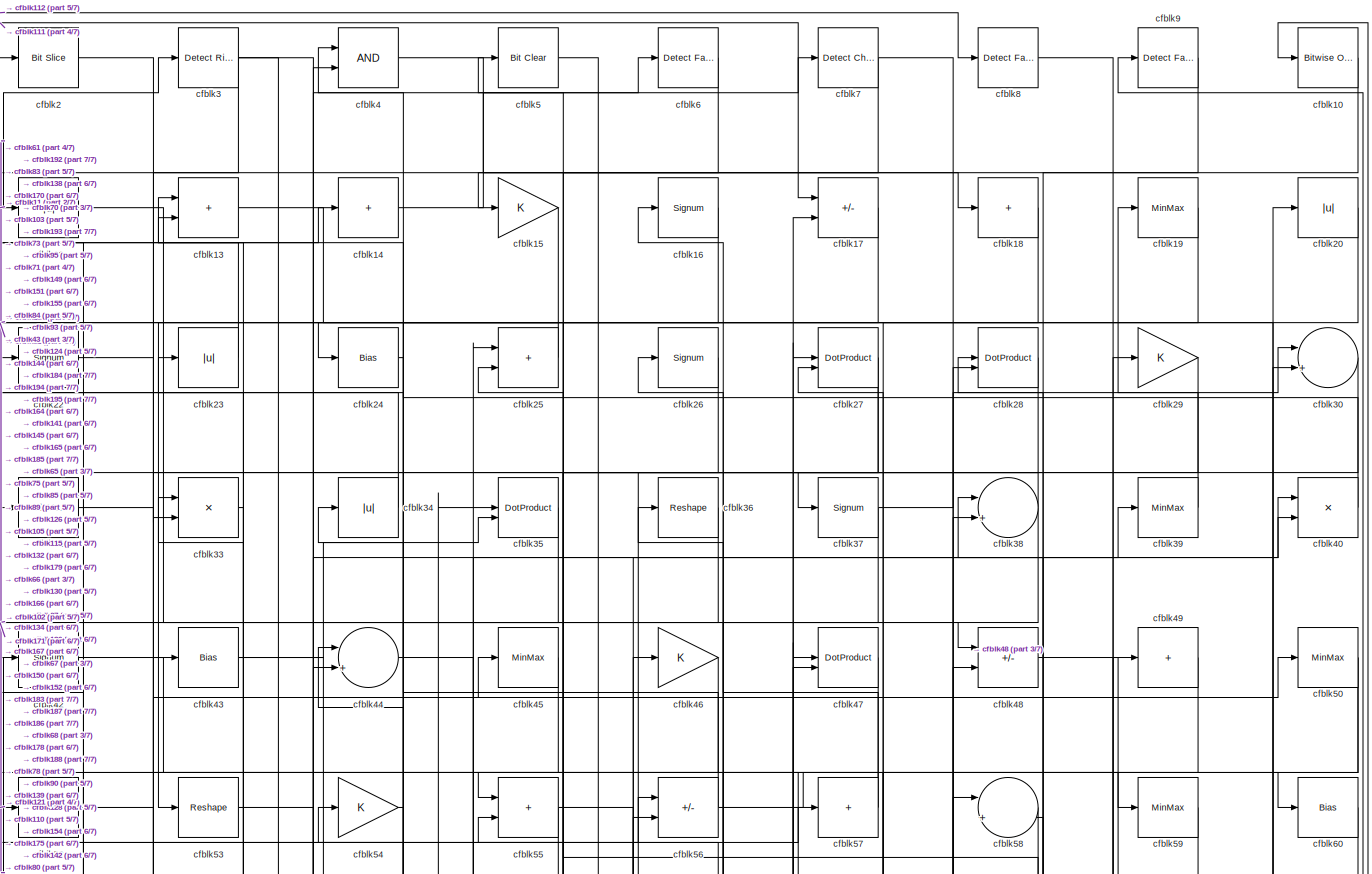
[diagram: root canvas - part 1/7, full width, top band]
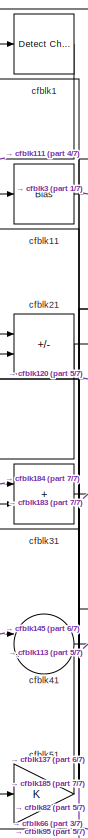
[diagram: root canvas - part 2/7, top left region]
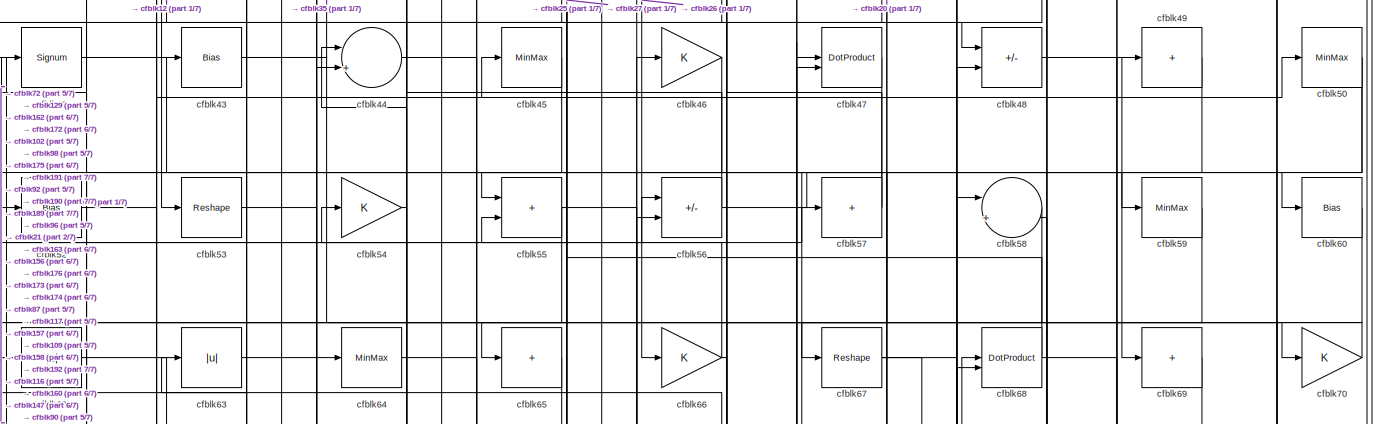
[diagram: root canvas - part 3/7, full width, top band]
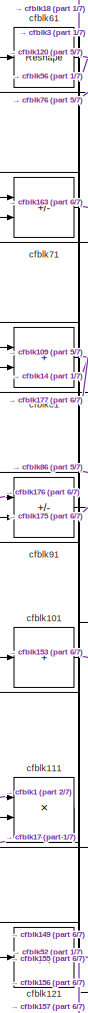
[diagram: root canvas - part 4/7, middle left region]
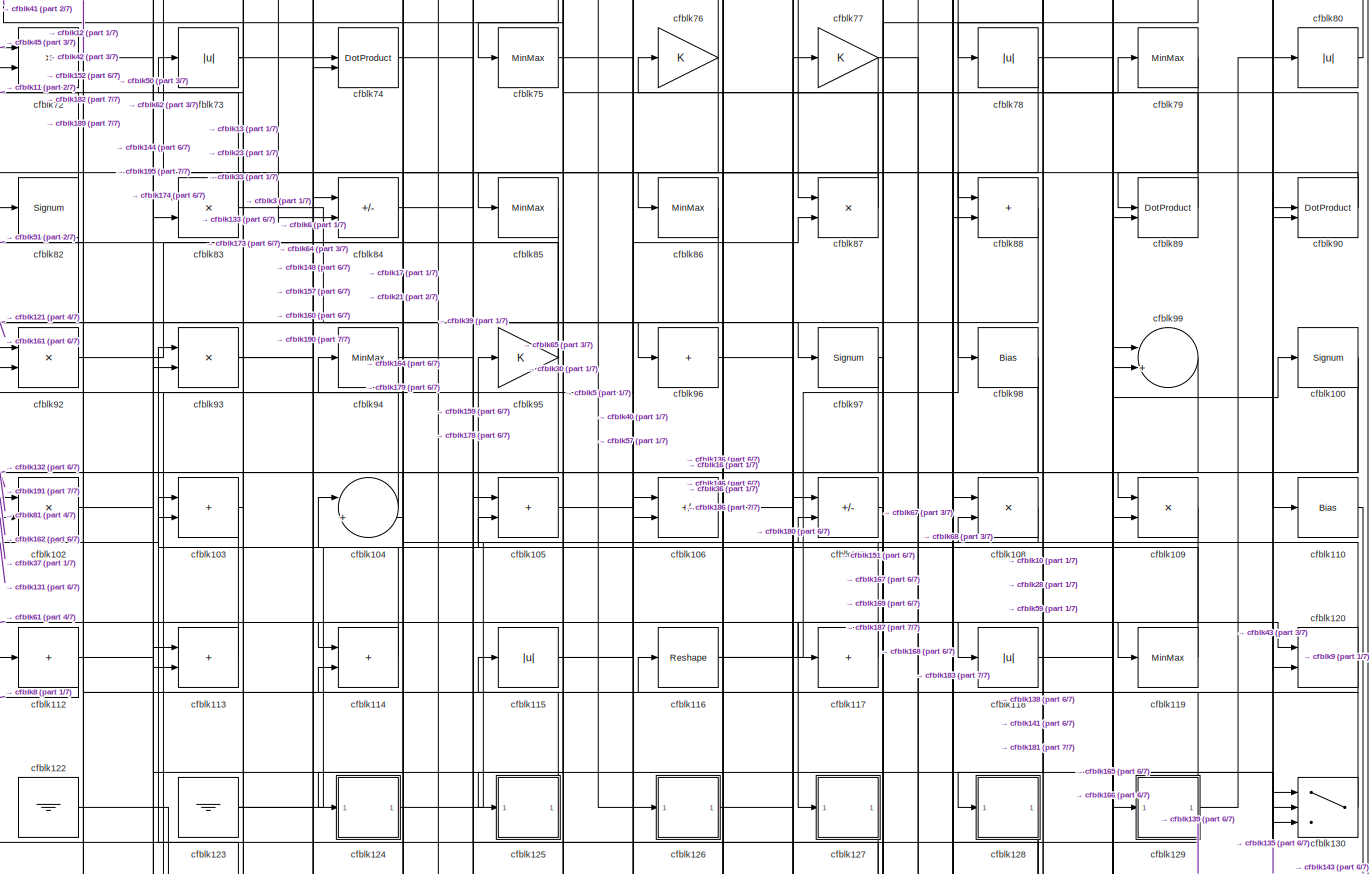
[diagram: root canvas - part 5/7, full width, middle band]
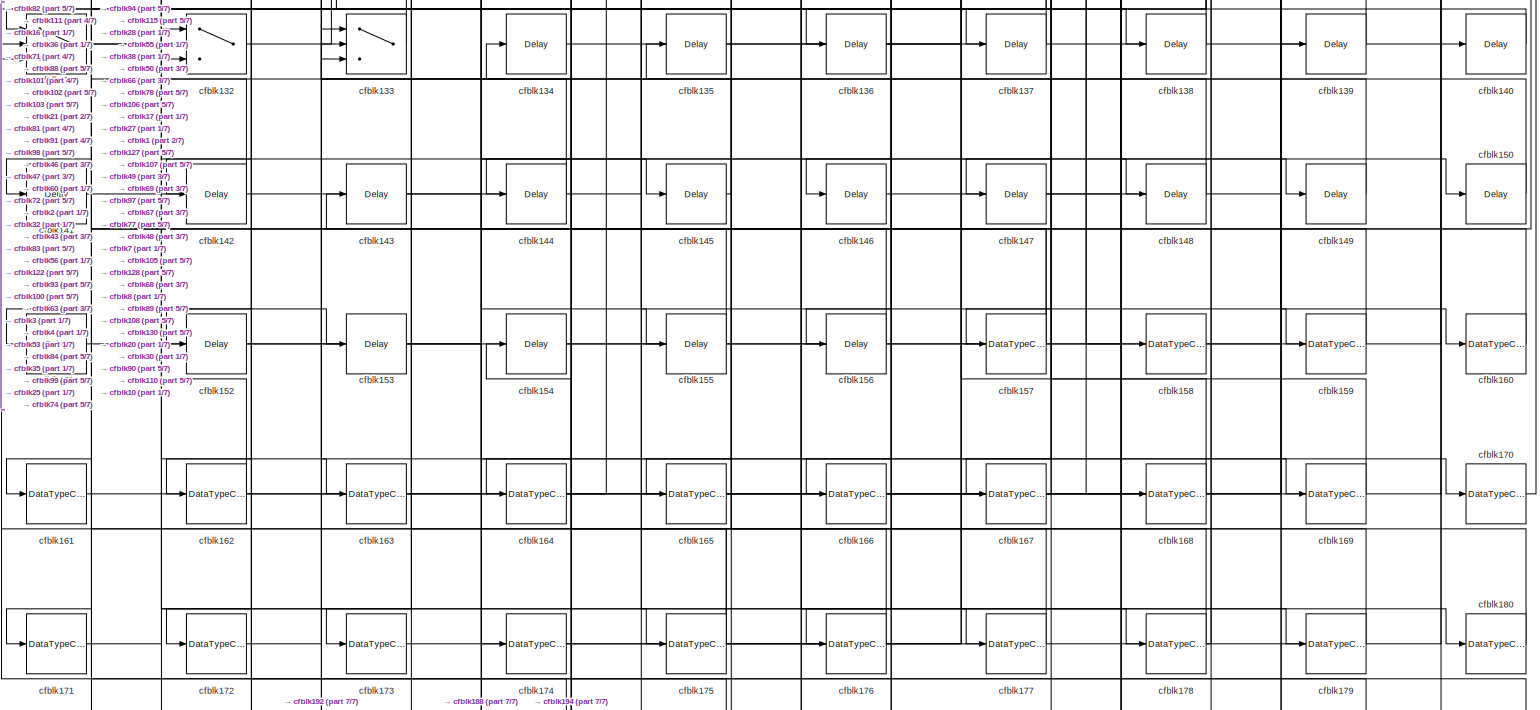
[diagram: root canvas - part 6/7, full width, bottom band]
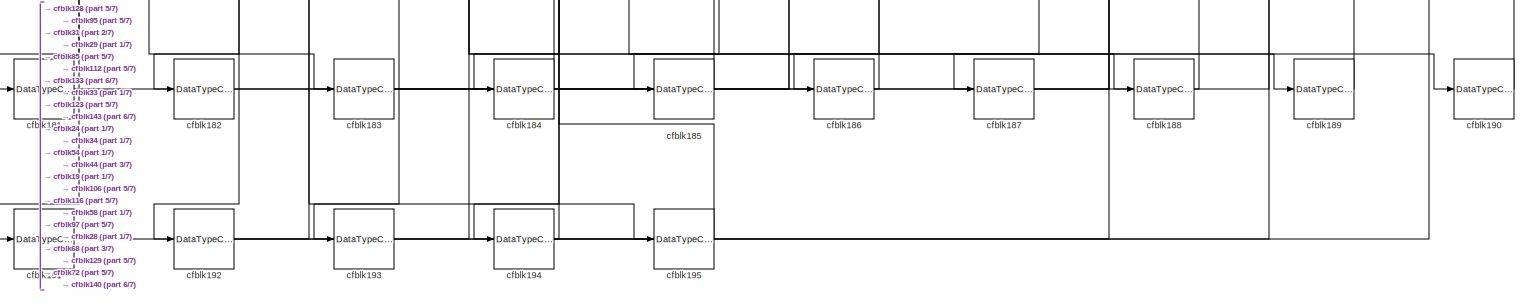
[diagram: root canvas - part 7/7, full width, bottom band]
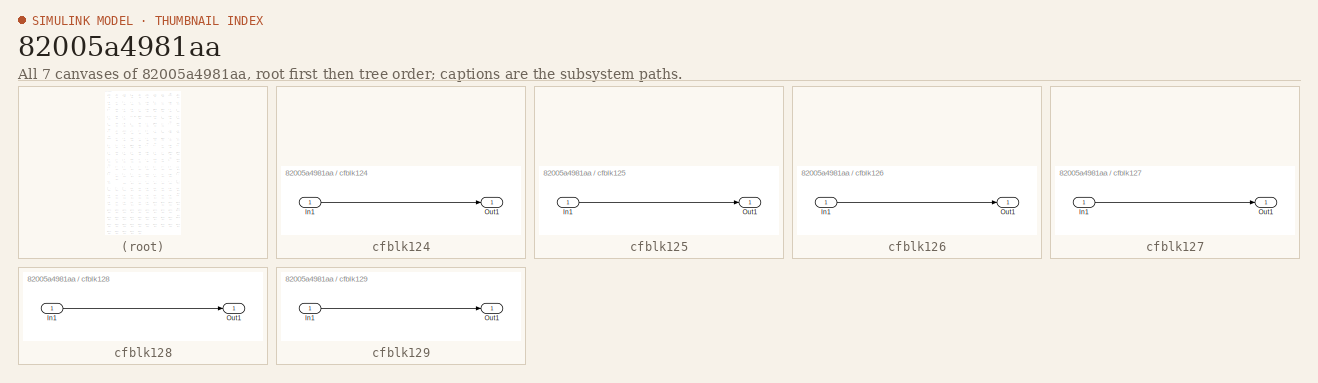
[diagram: thumbnail index - all 7 canvases of the model, root first then tree order]
MODEL slx_82005a4981aa
KIND model
CONFIG AbsTol = auto
CONFIG EnableMultiTasking = off
CONFIG FixedStep = auto
CONFIG MaxStep = auto
CONFIG MinStep = auto
CONFIG RelTol = 1e-3
CONFIG SampleTimeConstraint = Unconstrained
CONFIG SolverName = VariableStepAuto
CONFIG StartTime = 0.0
CONFIG StopTime = 10.0
BLOCK [Reference] cfblk1  REF=simulink/Logic and Bit
Operations/Detect
Change
  LibrarySourceBlock = hdlsllib/Logic and Bit\nOperations/Detect\nChange
  SourceBlock = simulink/Logic and Bit\nOperations/Detect\nChange
  SourceType = Detect Change
BLOCK [Reference] cfblk10  REF=simulink/Logic and Bit
Operations/Bitwise
Operator
  LibrarySourceBlock = hdlsllib/Logic and Bit\nOperations/Bitwise\nOperator
  SourceBlock = simulink/Logic and Bit\nOperations/Bitwise\nOperator
  SourceType = Bitwise Operator
BLOCK [Signum] cfblk100
BLOCK [Sum] cfblk101
  IconShape = rectangular
  Inputs = +
BLOCK [Product] cfblk102
  Inputs = */
  RndMeth = Zero
  SaturateOnIntegerOverflow = on
BLOCK [Sum] cfblk103
  IconShape = rectangular
BLOCK [Sum] cfblk104
  Inputs = |++
BLOCK [Sum] cfblk105
  IconShape = rectangular
BLOCK [Sum] cfblk106
  IconShape = rectangular
  Inputs = +-
BLOCK [Sum] cfblk107
  IconShape = rectangular
  Inputs = +-
BLOCK [Product] cfblk108
  Inputs = */
  RndMeth = Zero
  SaturateOnIntegerOverflow = on
BLOCK [Product] cfblk109
  Inputs = */
  RndMeth = Zero
  SaturateOnIntegerOverflow = on
BLOCK [Bias] cfblk11
  Bias = 0.0
  SaturateOnIntegerOverflow = off
BLOCK [Bias] cfblk110
  Bias = 0.0
  SaturateOnIntegerOverflow = off
BLOCK [Product] cfblk111
  Inputs = */
  RndMeth = Zero
  SaturateOnIntegerOverflow = on
BLOCK [Sum] cfblk112
  IconShape = rectangular
  Inputs = +
BLOCK [Sum] cfblk113
  IconShape = rectangular
BLOCK [Sum] cfblk114
  IconShape = rectangular
BLOCK [Abs] cfblk115
  SaturateOnIntegerOverflow = off
BLOCK [Reshape] cfblk116
BLOCK [Sum] cfblk117
  IconShape = rectangular
  Inputs = +
BLOCK [Abs] cfblk118
  SaturateOnIntegerOverflow = off
BLOCK [MinMax] cfblk119
BLOCK [Abs] cfblk12
  SaturateOnIntegerOverflow = off
BLOCK [Sum] cfblk120
  IconShape = rectangular
BLOCK [Abs] cfblk121
  SaturateOnIntegerOverflow = off
BLOCK [Ground] cfblk122
BLOCK [Ground] cfblk123
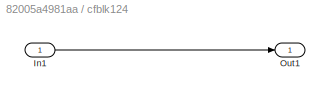
BLOCK [SubSystem] cfblk124
  LibrarySourceBlock = hdlsllib/Ports &\nSubsystems/Subsystem
BLOCK [Inport] cfblk124/In1
BLOCK [Outport] cfblk124/Out1
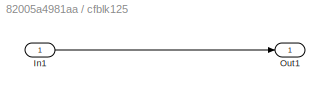
BLOCK [SubSystem] cfblk125
  LibrarySourceBlock = hdlsllib/Ports &\nSubsystems/Subsystem
BLOCK [Inport] cfblk125/In1
BLOCK [Outport] cfblk125/Out1
BLOCK [SubSystem] cfblk126
  LibrarySourceBlock = hdlsllib/Ports &\nSubsystems/Subsystem
BLOCK [Inport] cfblk126/In1
BLOCK [Outport] cfblk126/Out1
BLOCK [SubSystem] cfblk127
  LibrarySourceBlock = hdlsllib/Ports &\nSubsystems/Subsystem
BLOCK [Inport] cfblk127/In1
BLOCK [Outport] cfblk127/Out1
BLOCK [SubSystem] cfblk128
  LibrarySourceBlock = hdlsllib/Ports &\nSubsystems/Subsystem
BLOCK [Inport] cfblk128/In1
BLOCK [Outport] cfblk128/Out1
BLOCK [SubSystem] cfblk129
  LibrarySourceBlock = hdlsllib/Ports &\nSubsystems/Subsystem
BLOCK [Inport] cfblk129/In1
BLOCK [Outport] cfblk129/Out1
BLOCK [Sum] cfblk13
  IconShape = rectangular
BLOCK [Switch] cfblk130
  InputSameDT = off
  SaturateOnIntegerOverflow = off
BLOCK [Switch] cfblk131
  InputSameDT = off
  SaturateOnIntegerOverflow = off
BLOCK [Switch] cfblk132
  InputSameDT = off
  SaturateOnIntegerOverflow = off
BLOCK [Switch] cfblk133
  InputSameDT = off
  SaturateOnIntegerOverflow = off
BLOCK [Delay] cfblk134
  InputPortMap = u0
  SampleTime = 1
BLOCK [Delay] cfblk135
  InputPortMap = u0
  SampleTime = 1
BLOCK [Delay] cfblk136
  InputPortMap = u0
  SampleTime = 1
BLOCK [Delay] cfblk137
  InputPortMap = u0
  SampleTime = 1
BLOCK [Delay] cfblk138
  InputPortMap = u0
  SampleTime = 1
BLOCK [Delay] cfblk139
  InputPortMap = u0
  SampleTime = 1
BLOCK [Sum] cfblk14
  IconShape = rectangular
  Inputs = +
BLOCK [Delay] cfblk140
  InputPortMap = u0
  SampleTime = 1
BLOCK [Delay] cfblk141
  InputPortMap = u0
  SampleTime = 1
BLOCK [Delay] cfblk142
  InputPortMap = u0
  SampleTime = 1
BLOCK [Delay] cfblk143
  InputPortMap = u0
  SampleTime = 1
BLOCK [Delay] cfblk144
  InputPortMap = u0
  SampleTime = 1
BLOCK [Delay] cfblk145
  InputPortMap = u0
  SampleTime = 1
BLOCK [Delay] cfblk146
  InputPortMap = u0
  SampleTime = 1
BLOCK [Delay] cfblk147
  InputPortMap = u0
  SampleTime = 1
BLOCK [Delay] cfblk148
  InputPortMap = u0
  SampleTime = 1
BLOCK [Delay] cfblk149
  InputPortMap = u0
  SampleTime = 1
BLOCK [Gain] cfblk15
BLOCK [Delay] cfblk150
  InputPortMap = u0
  SampleTime = 1
BLOCK [Delay] cfblk151
  InputPortMap = u0
  SampleTime = 1
BLOCK [Delay] cfblk152
  InputPortMap = u0
  SampleTime = 1
BLOCK [Delay] cfblk153
  InputPortMap = u0
  SampleTime = 1
BLOCK [Delay] cfblk154
  InputPortMap = u0
  SampleTime = 1
BLOCK [Delay] cfblk155
  InputPortMap = u0
  SampleTime = 1
BLOCK [Delay] cfblk156
  InputPortMap = u0
  SampleTime = 1
BLOCK [DataTypeConversion] cfblk157
  RndMeth = Floor
  SaturateOnIntegerOverflow = off
BLOCK [DataTypeConversion] cfblk158
  OutDataTypeStr = uint8
  RndMeth = Floor
  SaturateOnIntegerOverflow = off
BLOCK [DataTypeConversion] cfblk159
  OutDataTypeStr = uint8
  RndMeth = Floor
  SaturateOnIntegerOverflow = off
BLOCK [Signum] cfblk16
BLOCK [DataTypeConversion] cfblk160
  OutDataTypeStr = uint8
  RndMeth = Floor
  SaturateOnIntegerOverflow = off
BLOCK [DataTypeConversion] cfblk161
  OutDataTypeStr = uint8
  RndMeth = Floor
  SaturateOnIntegerOverflow = off
BLOCK [DataTypeConversion] cfblk162
  RndMeth = Floor
  SaturateOnIntegerOverflow = off
BLOCK [DataTypeConversion] cfblk163
  OutDataTypeStr = uint8
  RndMeth = Floor
  SaturateOnIntegerOverflow = off
BLOCK [DataTypeConversion] cfblk164
  RndMeth = Floor
  SaturateOnIntegerOverflow = off
BLOCK [DataTypeConversion] cfblk165
  OutDataTypeStr = uint8
  RndMeth = Floor
  SaturateOnIntegerOverflow = off
BLOCK [DataTypeConversion] cfblk166
  OutDataTypeStr = uint8
  RndMeth = Floor
  SaturateOnIntegerOverflow = off
BLOCK [DataTypeConversion] cfblk167
  OutDataTypeStr = uint8
  RndMeth = Floor
  SaturateOnIntegerOverflow = off
BLOCK [DataTypeConversion] cfblk168
  OutDataTypeStr = uint8
  RndMeth = Floor
  SaturateOnIntegerOverflow = off
BLOCK [DataTypeConversion] cfblk169
  OutDataTypeStr = uint8
  RndMeth = Floor
  SaturateOnIntegerOverflow = off
BLOCK [Sum] cfblk17
  IconShape = rectangular
  Inputs = +-
BLOCK [DataTypeConversion] cfblk170
  OutDataTypeStr = uint8
  RndMeth = Floor
  SaturateOnIntegerOverflow = off
BLOCK [DataTypeConversion] cfblk171
  OutDataTypeStr = uint8
  RndMeth = Floor
  SaturateOnIntegerOverflow = off
BLOCK [DataTypeConversion] cfblk172
  OutDataTypeStr = uint8
  RndMeth = Floor
  SaturateOnIntegerOverflow = off
BLOCK [DataTypeConversion] cfblk173
  OutDataTypeStr = uint8
  RndMeth = Floor
  SaturateOnIntegerOverflow = off
BLOCK [DataTypeConversion] cfblk174
  OutDataTypeStr = uint8
  RndMeth = Floor
  SaturateOnIntegerOverflow = off
BLOCK [DataTypeConversion] cfblk175
  RndMeth = Floor
  SaturateOnIntegerOverflow = off
BLOCK [DataTypeConversion] cfblk176
  OutDataTypeStr = uint8
  RndMeth = Floor
  SaturateOnIntegerOverflow = off
BLOCK [DataTypeConversion] cfblk177
  OutDataTypeStr = uint8
  RndMeth = Floor
  SaturateOnIntegerOverflow = off
BLOCK [DataTypeConversion] cfblk178
  RndMeth = Floor
  SaturateOnIntegerOverflow = off
BLOCK [DataTypeConversion] cfblk179
  OutDataTypeStr = uint8
  RndMeth = Floor
  SaturateOnIntegerOverflow = off
BLOCK [Sum] cfblk18
  IconShape = rectangular
  Inputs = +
BLOCK [DataTypeConversion] cfblk180
  OutDataTypeStr = uint8
  RndMeth = Floor
  SaturateOnIntegerOverflow = off
BLOCK [DataTypeConversion] cfblk181
  OutDataTypeStr = uint8
  RndMeth = Floor
  SaturateOnIntegerOverflow = off
BLOCK [DataTypeConversion] cfblk182
  OutDataTypeStr = uint8
  RndMeth = Floor
  SaturateOnIntegerOverflow = off
BLOCK [DataTypeConversion] cfblk183
  RndMeth = Floor
  SaturateOnIntegerOverflow = off
BLOCK [DataTypeConversion] cfblk184
  OutDataTypeStr = uint8
  RndMeth = Floor
  SaturateOnIntegerOverflow = off
BLOCK [DataTypeConversion] cfblk185
  OutDataTypeStr = uint8
  RndMeth = Floor
  SaturateOnIntegerOverflow = off
BLOCK [DataTypeConversion] cfblk186
  OutDataTypeStr = uint8
  RndMeth = Floor
  SaturateOnIntegerOverflow = off
BLOCK [DataTypeConversion] cfblk187
  OutDataTypeStr = uint8
  RndMeth = Floor
  SaturateOnIntegerOverflow = off
BLOCK [DataTypeConversion] cfblk188
  OutDataTypeStr = uint8
  RndMeth = Floor
  SaturateOnIntegerOverflow = off
BLOCK [DataTypeConversion] cfblk189
  OutDataTypeStr = uint8
  RndMeth = Floor
  SaturateOnIntegerOverflow = off
BLOCK [MinMax] cfblk19
BLOCK [DataTypeConversion] cfblk190
  OutDataTypeStr = uint8
  RndMeth = Floor
  SaturateOnIntegerOverflow = off
BLOCK [DataTypeConversion] cfblk191
  OutDataTypeStr = uint8
  RndMeth = Floor
  SaturateOnIntegerOverflow = off
BLOCK [DataTypeConversion] cfblk192
  RndMeth = Floor
  SaturateOnIntegerOverflow = off
BLOCK [DataTypeConversion] cfblk193
  OutDataTypeStr = uint8
  RndMeth = Floor
  SaturateOnIntegerOverflow = off
BLOCK [DataTypeConversion] cfblk194
  RndMeth = Floor
  SaturateOnIntegerOverflow = off
BLOCK [DataTypeConversion] cfblk195
  OutDataTypeStr = uint8
  RndMeth = Floor
  SaturateOnIntegerOverflow = off
BLOCK [Reference] cfblk2  REF=hdlsllib/Logic and Bit
Operations/Bit Slice
  SourceBlock = hdlsllib/Logic and Bit\nOperations/Bit Slice
  SourceType = Bit Slice
BLOCK [Abs] cfblk20
  SaturateOnIntegerOverflow = off
BLOCK [Sum] cfblk21
  IconShape = rectangular
  Inputs = +-
BLOCK [Signum] cfblk22
BLOCK [Abs] cfblk23
  SaturateOnIntegerOverflow = off
BLOCK [Bias] cfblk24
  Bias = 0.0
  SaturateOnIntegerOverflow = off
BLOCK [Sum] cfblk25
  IconShape = rectangular
BLOCK [Signum] cfblk26
BLOCK [DotProduct] cfblk27
  OutDataTypeStr = Inherit: Inherit via internal rule
BLOCK [DotProduct] cfblk28
  OutDataTypeStr = Inherit: Inherit via internal rule
BLOCK [Gain] cfblk29
BLOCK [Reference] cfblk3  REF=hdlsllib/Logic and Bit
Operations/Detect Rise
Nonnegative
  SourceBlock = hdlsllib/Logic and Bit\nOperations/Detect Rise\nNonnegative
  SourceType = Detect Rise Nonnegative
BLOCK [Sum] cfblk30
  Inputs = |++
BLOCK [Sum] cfblk31
  IconShape = rectangular
BLOCK [MinMax] cfblk32
BLOCK [Product] cfblk33
  Inputs = */
  RndMeth = Zero
  SaturateOnIntegerOverflow = on
BLOCK [Abs] cfblk34
  SaturateOnIntegerOverflow = off
BLOCK [DotProduct] cfblk35
  OutDataTypeStr = Inherit: Inherit via internal rule
BLOCK [Reshape] cfblk36
BLOCK [Signum] cfblk37
BLOCK [Sum] cfblk38
  Inputs = |++
BLOCK [MinMax] cfblk39
BLOCK [Logic] cfblk4
  AllPortsSameDT = off
  OutDataTypeStr = boolean
BLOCK [Product] cfblk40
  Inputs = */
  RndMeth = Zero
  SaturateOnIntegerOverflow = on
BLOCK [Sum] cfblk41
  Inputs = |++
BLOCK [Signum] cfblk42
BLOCK [Bias] cfblk43
  Bias = 0.0
  SaturateOnIntegerOverflow = off
BLOCK [Sum] cfblk44
  Inputs = |++
BLOCK [MinMax] cfblk45
BLOCK [Gain] cfblk46
BLOCK [DotProduct] cfblk47
  OutDataTypeStr = Inherit: Inherit via internal rule
BLOCK [Sum] cfblk48
  IconShape = rectangular
  Inputs = +-
BLOCK [Sum] cfblk49
  IconShape = rectangular
  Inputs = +
BLOCK [Reference] cfblk5  REF=simulink/Logic and Bit
Operations/Bit Clear
  LibrarySourceBlock = hdlsllib/Logic and Bit\nOperations/Bit Clear
  SourceBlock = simulink/Logic and Bit\nOperations/Bit Clear
  SourceType = Bit Clear
BLOCK [MinMax] cfblk50
BLOCK [Gain] cfblk51
BLOCK [Bias] cfblk52
  Bias = 0.0
  SaturateOnIntegerOverflow = off
BLOCK [Reshape] cfblk53
BLOCK [Gain] cfblk54
BLOCK [Sum] cfblk55
  IconShape = rectangular
BLOCK [Sum] cfblk56
  IconShape = rectangular
  Inputs = +-
BLOCK [Sum] cfblk57
  IconShape = rectangular
  Inputs = +
BLOCK [Sum] cfblk58
  Inputs = |++
BLOCK [MinMax] cfblk59
BLOCK [Reference] cfblk6  REF=hdlsllib/Logic and Bit
Operations/Detect Fall
Nonpositive
  SourceBlock = hdlsllib/Logic and Bit\nOperations/Detect Fall\nNonpositive
  SourceType = Detect Fall Nonpositive
BLOCK [Bias] cfblk60
  Bias = 0.0
  SaturateOnIntegerOverflow = off
BLOCK [Reshape] cfblk61
BLOCK [Abs] cfblk62
  SaturateOnIntegerOverflow = off
BLOCK [Abs] cfblk63
  SaturateOnIntegerOverflow = off
BLOCK [MinMax] cfblk64
BLOCK [Sum] cfblk65
  IconShape = rectangular
  Inputs = +
BLOCK [Gain] cfblk66
BLOCK [Reshape] cfblk67
BLOCK [DotProduct] cfblk68
  OutDataTypeStr = Inherit: Inherit via internal rule
BLOCK [Sum] cfblk69
  IconShape = rectangular
  Inputs = +
BLOCK [Reference] cfblk7  REF=simulink/Logic and Bit
Operations/Detect
Change
  LibrarySourceBlock = hdlsllib/Logic and Bit\nOperations/Detect\nChange
  SourceBlock = simulink/Logic and Bit\nOperations/Detect\nChange
  SourceType = Detect Change
BLOCK [Gain] cfblk70
BLOCK [Sum] cfblk71
  IconShape = rectangular
  Inputs = +-
BLOCK [Product] cfblk72
  Inputs = */
  RndMeth = Zero
  SaturateOnIntegerOverflow = on
BLOCK [Abs] cfblk73
  SaturateOnIntegerOverflow = off
BLOCK [DotProduct] cfblk74
  OutDataTypeStr = Inherit: Inherit via internal rule
BLOCK [MinMax] cfblk75
BLOCK [Gain] cfblk76
BLOCK [Gain] cfblk77
BLOCK [Abs] cfblk78
  SaturateOnIntegerOverflow = off
BLOCK [MinMax] cfblk79
BLOCK [Reference] cfblk8  REF=hdlsllib/Logic and Bit
Operations/Detect Fall
Nonpositive
  SourceBlock = hdlsllib/Logic and Bit\nOperations/Detect Fall\nNonpositive
  SourceType = Detect Fall Nonpositive
BLOCK [Abs] cfblk80
  SaturateOnIntegerOverflow = off
BLOCK [Sum] cfblk81
  IconShape = rectangular
BLOCK [Signum] cfblk82
BLOCK [Product] cfblk83
  Inputs = */
  RndMeth = Zero
  SaturateOnIntegerOverflow = on
BLOCK [Sum] cfblk84
  IconShape = rectangular
  Inputs = +-
BLOCK [MinMax] cfblk85
BLOCK [MinMax] cfblk86
BLOCK [Product] cfblk87
  Inputs = */
  RndMeth = Zero
  SaturateOnIntegerOverflow = on
BLOCK [Sum] cfblk88
  IconShape = rectangular
BLOCK [DotProduct] cfblk89
  OutDataTypeStr = Inherit: Inherit via internal rule
BLOCK [Reference] cfblk9  REF=hdlsllib/Logic and Bit
Operations/Detect Fall
Nonpositive
  SourceBlock = hdlsllib/Logic and Bit\nOperations/Detect Fall\nNonpositive
  SourceType = Detect Fall Nonpositive
BLOCK [DotProduct] cfblk90
  OutDataTypeStr = Inherit: Inherit via internal rule
BLOCK [Sum] cfblk91
  IconShape = rectangular
  Inputs = +-
BLOCK [Product] cfblk92
  Inputs = */
  RndMeth = Zero
  SaturateOnIntegerOverflow = on
BLOCK [Product] cfblk93
  Inputs = */
  RndMeth = Zero
  SaturateOnIntegerOverflow = on
BLOCK [MinMax] cfblk94
BLOCK [Gain] cfblk95
BLOCK [Sum] cfblk96
  IconShape = rectangular
  Inputs = +
BLOCK [Signum] cfblk97
BLOCK [Bias] cfblk98
  Bias = 0.0
  SaturateOnIntegerOverflow = off
BLOCK [Sum] cfblk99
  Inputs = |++
NET cfblk100:1 -> cfblk125:1, cfblk173:1
LINE cfblk101:1 -> cfblk153:1
LINE cfblk102:1 -> cfblk50:1
NET cfblk103:1 -> cfblk113:2, cfblk23:1
LINE cfblk104:1 -> cfblk92:1
LINE cfblk105:1 -> cfblk57:1
LINE cfblk106:1 -> cfblk180:1
LINE cfblk107:1 -> cfblk167:1
LINE cfblk108:1 -> cfblk105:2
LINE cfblk109:1 -> cfblk127:1
LINE cfblk10:1 -> cfblk78:1
LINE cfblk110:1 -> cfblk143:1
LINE cfblk111:1 -> cfblk17:1
NET cfblk112:1 -> cfblk195:1, cfblk8:1
LINE cfblk113:1 -> cfblk112:1
LINE cfblk114:1 -> cfblk104:1
NET cfblk115:1 -> cfblk40:1, cfblk87:2
NET cfblk116:1 -> cfblk120:1, cfblk68:1, cfblk79:1
LINE cfblk117:1 -> cfblk76:1
LINE cfblk118:1 -> cfblk100:1
LINE cfblk119:1 -> cfblk103:1
LINE cfblk11:1 -> cfblk3:1
NET cfblk120:1 -> cfblk114:2, cfblk21:1
LINE cfblk121:1 -> cfblk52:1
LINE cfblk122:1 -> cfblk174:1
NET cfblk123:1 -> cfblk190:1, cfblk73:1, cfblk95:1
LINE cfblk124/In1:1 -> cfblk124/Out1:1
LINE cfblk124:1 -> cfblk108:2
LINE cfblk125/In1:1 -> cfblk125/Out1:1
LINE cfblk125:1 -> cfblk82:1
LINE cfblk126/In1:1 -> cfblk126/Out1:1
LINE cfblk126:1 -> cfblk77:1
LINE cfblk127/In1:1 -> cfblk127/Out1:1
LINE cfblk127:1 -> cfblk151:1
LINE cfblk128/In1:1 -> cfblk128/Out1:1
NET cfblk128:1 -> cfblk141:1, cfblk181:1
LINE cfblk129/In1:1 -> cfblk129/Out1:1
NET cfblk129:1 -> cfblk42:1, cfblk80:1
LINE cfblk12:1 -> cfblk48:1
LINE cfblk130:1 -> cfblk16:1
NET cfblk131:1 -> cfblk103:2, cfblk137:1
LINE cfblk132:1 -> cfblk56:2
LINE cfblk133:1 -> cfblk93:1
LINE cfblk134:1 -> cfblk17:2
LINE cfblk135:1 -> cfblk90:1
LINE cfblk136:1 -> cfblk27:1
LINE cfblk137:1 -> cfblk1:1
LINE cfblk138:1 -> cfblk105:1
LINE cfblk139:1 -> cfblk108:1
LINE cfblk13:1 -> cfblk110:1
LINE cfblk140:1 -> cfblk131:2
LINE cfblk141:1 -> cfblk25:1
LINE cfblk142:1 -> cfblk132:1
LINE cfblk143:1 -> cfblk188:1
LINE cfblk144:1 -> cfblk83:1
LINE cfblk145:1 -> cfblk55:2
LINE cfblk146:1 -> cfblk89:2
LINE cfblk147:1 -> cfblk48:2
LINE cfblk148:1 -> cfblk133:1
LINE cfblk149:1 -> cfblk81:2
LINE cfblk14:1 -> cfblk7:1
LINE cfblk150:1 -> cfblk133:2
LINE cfblk151:1 -> cfblk4:2
LINE cfblk152:1 -> cfblk38:2
LINE cfblk153:1 -> cfblk169:1
LINE cfblk154:1 -> cfblk30:2
LINE cfblk155:1 -> cfblk111:2
LINE cfblk156:1 -> cfblk71:2
NET cfblk157:1 -> cfblk101:1, cfblk84:1
LINE cfblk158:1 -> cfblk49:1
LINE cfblk159:1 -> cfblk134:1
LINE cfblk15:1 -> cfblk53:1
LINE cfblk160:1 -> cfblk74:1
LINE cfblk161:1 -> cfblk74:2
NET cfblk162:1 -> cfblk102:1, cfblk88:2
LINE cfblk163:1 -> cfblk46:1
NET cfblk164:1 -> cfblk130:1, cfblk35:1
LINE cfblk165:1 -> cfblk99:1
LINE cfblk166:1 -> cfblk99:2
LINE cfblk167:1 -> cfblk27:2
LINE cfblk168:1 -> cfblk107:1
LINE cfblk169:1 -> cfblk107:2
LINE cfblk16:1 -> cfblk131:1
LINE cfblk170:1 -> cfblk10:1
LINE cfblk171:1 -> cfblk32:1
LINE cfblk172:1 -> cfblk43:1
LINE cfblk173:1 -> cfblk47:1
LINE cfblk174:1 -> cfblk47:2
NET cfblk175:1 -> cfblk154:1, cfblk20:1, cfblk63:1
LINE cfblk176:1 -> cfblk91:1
LINE cfblk177:1 -> cfblk91:2
NET cfblk178:1 -> cfblk115:1, cfblk38:1
LINE cfblk179:1 -> cfblk94:1
LINE cfblk17:1 -> cfblk124:1
LINE cfblk180:1 -> cfblk135:1
LINE cfblk181:1 -> cfblk106:1
LINE cfblk182:1 -> cfblk106:2
NET cfblk183:1 -> cfblk129:1, cfblk28:2
LINE cfblk184:1 -> cfblk31:1
LINE cfblk185:1 -> cfblk31:2
LINE cfblk186:1 -> cfblk116:1
LINE cfblk187:1 -> cfblk58:1
LINE cfblk188:1 -> cfblk58:2
LINE cfblk189:1 -> cfblk72:2
LINE cfblk18:1 -> cfblk81:1
LINE cfblk190:1 -> cfblk44:1
LINE cfblk191:1 -> cfblk44:2
NET cfblk192:1 -> cfblk133:3, cfblk68:2
LINE cfblk193:1 -> cfblk29:1
NET cfblk194:1 -> cfblk140:1, cfblk34:1
LINE cfblk195:1 -> cfblk54:1
LINE cfblk19:1 -> cfblk185:1
LINE cfblk1:1 -> cfblk111:1
LINE cfblk20:1 -> cfblk67:1
NET cfblk21:1 -> cfblk145:1, cfblk41:1
LINE cfblk22:1 -> cfblk59:1
LINE cfblk23:1 -> cfblk2:1
LINE cfblk24:1 -> cfblk184:1
LINE cfblk25:1 -> cfblk24:1
LINE cfblk26:1 -> cfblk66:1
NET cfblk27:1 -> cfblk33:2, cfblk65:1
LINE cfblk28:1 -> cfblk165:1
LINE cfblk29:1 -> cfblk192:1
LINE cfblk2:1 -> cfblk138:1
LINE cfblk30:1 -> cfblk75:1
LINE cfblk31:1 -> cfblk183:1
LINE cfblk32:1 -> cfblk170:1
LINE cfblk33:1 -> cfblk193:1
LINE cfblk34:1 -> cfblk22:1
LINE cfblk35:1 -> cfblk144:1
LINE cfblk36:1 -> cfblk171:1
NET cfblk37:1 -> cfblk102:2, cfblk30:1
NET cfblk38:1 -> cfblk166:1, cfblk37:1
LINE cfblk39:1 -> cfblk19:1
NET cfblk3:1 -> cfblk155:1, cfblk71:1, cfblk84:2
LINE cfblk40:1 -> cfblk4:1
LINE cfblk41:1 -> cfblk113:1
LINE cfblk42:1 -> cfblk87:1
NET cfblk43:1 -> cfblk35:2, cfblk90:2
LINE cfblk44:1 -> cfblk189:1
LINE cfblk45:1 -> cfblk72:1
LINE cfblk46:1 -> cfblk162:1
LINE cfblk47:1 -> cfblk172:1
LINE cfblk48:1 -> cfblk69:1
LINE cfblk49:1 -> cfblk157:1
LINE cfblk4:1 -> cfblk18:1
NET cfblk50:1 -> cfblk117:1, cfblk156:1
LINE cfblk51:1 -> cfblk41:2
LINE cfblk52:1 -> cfblk70:1
LINE cfblk53:1 -> cfblk149:1
LINE cfblk54:1 -> cfblk194:1
NET cfblk55:1 -> cfblk132:3, cfblk179:1
NET cfblk56:1 -> cfblk13:2, cfblk60:1
NET cfblk57:1 -> cfblk26:1, cfblk55:1
LINE cfblk58:1 -> cfblk186:1
LINE cfblk59:1 -> cfblk128:1
LINE cfblk5:1 -> cfblk126:1
LINE cfblk60:1 -> cfblk142:1
NET cfblk61:1 -> cfblk120:2, cfblk56:1
LINE cfblk62:1 -> cfblk98:1
LINE cfblk63:1 -> cfblk45:1
LINE cfblk64:1 -> cfblk96:1
LINE cfblk65:1 -> cfblk83:2
NET cfblk66:1 -> cfblk176:1, cfblk21:2
NET cfblk67:1 -> cfblk109:2, cfblk158:1
NET cfblk68:1 -> cfblk160:1, cfblk25:2
LINE cfblk69:1 -> cfblk147:1
LINE cfblk6:1 -> cfblk93:2
LINE cfblk70:1 -> cfblk62:1
LINE cfblk71:1 -> cfblk163:1
NET cfblk72:1 -> cfblk130:3, cfblk152:1
NET cfblk73:1 -> cfblk13:1, cfblk6:1
LINE cfblk74:1 -> cfblk159:1
LINE cfblk75:1 -> cfblk118:1
NET cfblk76:1 -> cfblk114:1, cfblk61:1
NET cfblk77:1 -> cfblk168:1, cfblk92:2
NET cfblk78:1 -> cfblk130:2, cfblk136:1
LINE cfblk79:1 -> cfblk88:1
NET cfblk7:1 -> cfblk150:1, cfblk15:1
LINE cfblk80:1 -> cfblk9:1
NET cfblk81:1 -> cfblk109:1, cfblk14:1, cfblk177:1
NET cfblk82:1 -> cfblk11:1, cfblk131:3
NET cfblk83:1 -> cfblk12:1, cfblk97:1
LINE cfblk84:1 -> cfblk39:1
LINE cfblk85:1 -> cfblk182:1
LINE cfblk86:1 -> cfblk121:1
NET cfblk87:1 -> cfblk36:1, cfblk86:1
LINE cfblk88:1 -> cfblk161:1
LINE cfblk89:1 -> cfblk5:1
LINE cfblk8:1 -> cfblk139:1
NET cfblk90:1 -> cfblk28:1, cfblk89:1
LINE cfblk91:1 -> cfblk175:1
LINE cfblk92:1 -> cfblk64:1
NET cfblk93:1 -> cfblk148:1, cfblk40:2
LINE cfblk94:1 -> cfblk178:1
NET cfblk95:1 -> cfblk191:1, cfblk33:1, cfblk51:1
LINE cfblk96:1 -> cfblk119:1
NET cfblk97:1 -> cfblk146:1, cfblk187:1
NET cfblk98:1 -> cfblk104:2, cfblk132:2
LINE cfblk99:1 -> cfblk164:1
LINE cfblk9:1 -> cfblk85:1
note: NET lines group one-source signal fan-out (src -> all destinations, sorted); 1:1 wires keep LINE
